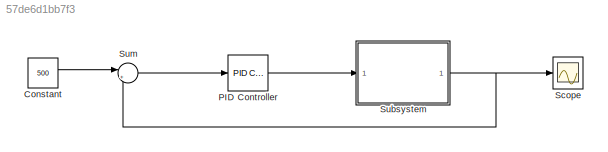
MODEL slx_57de6d1bb7f3
KIND model
CONFIG AbsTol = 1e-3
CONFIG EnableMultiTasking = on
CONFIG FixedStep = auto
CONFIG MaxStep = auto
CONFIG MinStep = auto
CONFIG RelTol = 1e-3
CONFIG SampleTimeConstraint = Unconstrained
CONFIG SolverName = VariableStepAuto
CONFIG StartTime = 0.0
CONFIG StopTime = 100.0
BLOCK [Constant] Constant
  Value = 500
BLOCK [Reference] PID Controller  REF=slpidlib/PID Controller
  Ports = [1, 1]
  SourceBlock = slpidlib/PID Controller
  SourceProductBaseCode = SL
  SourceType = PID 1dof
BLOCK [Scope] Scope
  Floating = off
  NumInputPorts = 1
  Ports = [1]
  ScopeSpecificationString = Simulink.scopes.TimeScopeBlockCfg('CurrentConfiguration', extmgr.ConfigurationSet(extmgr.Configuration('Core','General UI',true),extmgr.Configuration('Core','Source UI',true),extmgr.Configuration('Sources','WiredSimulink',true),extmgr.Configuration('Visuals','Time Domain',true,'SerializedDisplays',{struct('MinYLimReal','-66.97453','MaxYLimReal','602.7708','YLabelReal','','MinYLimMag','0.00000','Ma...<+1361ch>
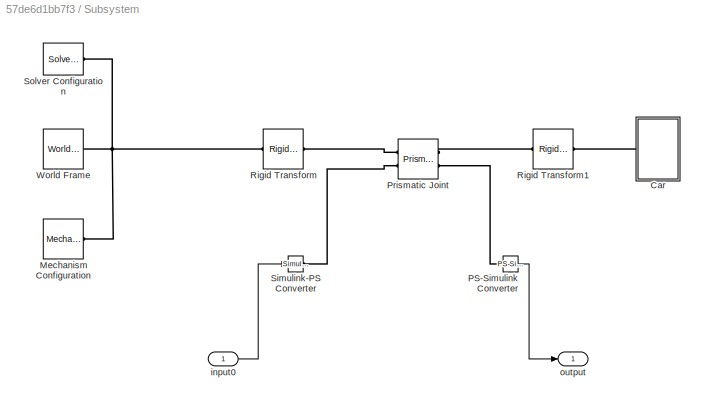
BLOCK [SubSystem] Subsystem
  Ports = [1, 1]
  RequestExecContextInheritance = off
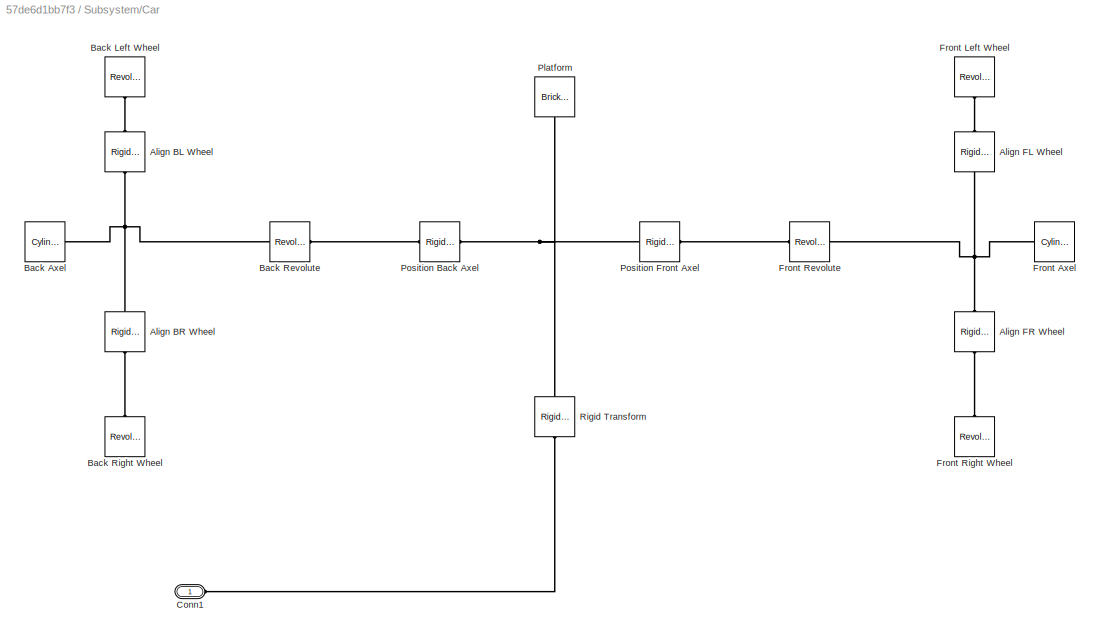
BLOCK [SubSystem] Subsystem/Car
  Ports = [0, 0, 0, 0, 0, 1]
  RequestExecContextInheritance = off
BLOCK [Reference] Subsystem/Car/Align BL Wheel  REF=sm_lib/Frames and
Transforms/Rigid
Transform
  NameLocation = right
  Ports = [0, 0, 0, 0, 0, 1, 1]
  SourceBlock = sm_lib/Frames and\nTransforms/Rigid\nTransform
  SourceProductBaseCode = MS
  SourceType = Rigid\nTransform
BLOCK [Reference] Subsystem/Car/Align BR Wheel  REF=sm_lib/Frames and
Transforms/Rigid
Transform
  NameLocation = left
  Ports = [0, 0, 0, 0, 0, 1, 1]
  SourceBlock = sm_lib/Frames and\nTransforms/Rigid\nTransform
  SourceProductBaseCode = MS
  SourceType = Rigid\nTransform
BLOCK [Reference] Subsystem/Car/Align FL Wheel  REF=sm_lib/Frames and
Transforms/Rigid
Transform
  NameLocation = right
  Ports = [0, 0, 0, 0, 0, 1, 1]
  SourceBlock = sm_lib/Frames and\nTransforms/Rigid\nTransform
  SourceProductBaseCode = MS
  SourceType = Rigid\nTransform
BLOCK [Reference] Subsystem/Car/Align FR Wheel  REF=sm_lib/Frames and
Transforms/Rigid
Transform
  NameLocation = left
  Ports = [0, 0, 0, 0, 0, 1, 1]
  SourceBlock = sm_lib/Frames and\nTransforms/Rigid\nTransform
  SourceProductBaseCode = MS
  SourceType = Rigid\nTransform
BLOCK [Reference] Subsystem/Car/Back Axel  REF=sm_lib/Body Elements/Cylindrical Solid
  NameLocation = top
  Ports = [0, 0, 0, 0, 0, 0, 1]
  SourceBlock = sm_lib/Body Elements/Cylindrical Solid
  SourceProductBaseCode = MS
  SourceType = Cylindrical Solid
BLOCK [Reference] Subsystem/Car/Back Left Wheel  REF=sm_lib/Body Elements/Revolved Solid
  NameLocation = left
  Ports = [0, 0, 0, 0, 0, 0, 1]
  SourceBlock = sm_lib/Body Elements/Revolved Solid
  SourceProductBaseCode = MS
  SourceType = Revolved Solid
BLOCK [Reference] Subsystem/Car/Back Revolute  REF=sm_lib/Joints/Revolute Joint
  Ports = [0, 0, 0, 0, 0, 1, 1]
  SourceBlock = sm_lib/Joints/Revolute Joint
  SourceProductBaseCode = MS
  SourceType = Revolute Joint
BLOCK [Reference] Subsystem/Car/Back Right Wheel  REF=sm_lib/Body Elements/Revolved Solid
  NameLocation = right
  Ports = [0, 0, 0, 0, 0, 0, 1]
  SourceBlock = sm_lib/Body Elements/Revolved Solid
  SourceProductBaseCode = MS
  SourceType = Revolved Solid
BLOCK [PMIOPort] Subsystem/Car/Conn1
  Side = Left
BLOCK [Reference] Subsystem/Car/Front Axel  REF=sm_lib/Body Elements/Cylindrical Solid
  NameLocation = top
  Ports = [0, 0, 0, 0, 0, 0, 1]
  SourceBlock = sm_lib/Body Elements/Cylindrical Solid
  SourceProductBaseCode = MS
  SourceType = Cylindrical Solid
BLOCK [Reference] Subsystem/Car/Front Left Wheel  REF=sm_lib/Body Elements/Revolved Solid
  NameLocation = left
  Ports = [0, 0, 0, 0, 0, 0, 1]
  SourceBlock = sm_lib/Body Elements/Revolved Solid
  SourceProductBaseCode = MS
  SourceType = Revolved Solid
BLOCK [Reference] Subsystem/Car/Front Revolute  REF=sm_lib/Joints/Revolute Joint
  Ports = [0, 0, 0, 0, 0, 1, 1]
  SourceBlock = sm_lib/Joints/Revolute Joint
  SourceProductBaseCode = MS
  SourceType = Revolute Joint
BLOCK [Reference] Subsystem/Car/Front Right Wheel  REF=sm_lib/Body Elements/Revolved Solid
  NameLocation = right
  Ports = [0, 0, 0, 0, 0, 0, 1]
  SourceBlock = sm_lib/Body Elements/Revolved Solid
  SourceProductBaseCode = MS
  SourceType = Revolved Solid
BLOCK [Reference] Subsystem/Car/Platform  REF=sm_lib/Body Elements/Brick Solid
  NameLocation = left
  Ports = [0, 0, 0, 0, 0, 0, 1]
  SourceBlock = sm_lib/Body Elements/Brick Solid
  SourceProductBaseCode = MS
  SourceType = Brick Solid
BLOCK [Reference] Subsystem/Car/Position Back Axel  REF=sm_lib/Frames and
Transforms/Rigid
Transform
  Ports = [0, 0, 0, 0, 0, 1, 1]
  SourceBlock = sm_lib/Frames and\nTransforms/Rigid\nTransform
  SourceProductBaseCode = MS
  SourceType = Rigid\nTransform
BLOCK [Reference] Subsystem/Car/Position Front Axel  REF=sm_lib/Frames and
Transforms/Rigid
Transform
  Ports = [0, 0, 0, 0, 0, 1, 1]
  SourceBlock = sm_lib/Frames and\nTransforms/Rigid\nTransform
  SourceProductBaseCode = MS
  SourceType = Rigid\nTransform
BLOCK [Reference] Subsystem/Car/Rigid Transform  REF=sm_lib/Frames and
Transforms/Rigid
Transform
  NameLocation = right
  Ports = [0, 0, 0, 0, 0, 1, 1]
  SourceBlock = sm_lib/Frames and\nTransforms/Rigid\nTransform
  SourceProductBaseCode = MS
  SourceType = Rigid\nTransform
BLOCK [Reference] Subsystem/Mechanism Configuration  REF=sm_lib/Utilities/Mechanism
Configuration
  Ports = [0, 0, 0, 0, 0, 0, 1]
  SourceBlock = sm_lib/Utilities/Mechanism\nConfiguration
  SourceProductBaseCode = MS
  SourceType = Mechanism\nConfiguration
BLOCK [Reference] Subsystem/PS-Simulink Converter  REF=nesl_utility/PS-Simulink
Converter
  Ports = [0, 1, 0, 0, 0, 1]
  SourceBlock = nesl_utility/PS-Simulink\nConverter
  SourceProductBaseCode = SS,PW,VE
  SourceType = PS-Simulink\nConverter
BLOCK [Reference] Subsystem/Prismatic Joint  REF=sm_lib/Joints/Prismatic
Joint
  Ports = [0, 0, 0, 0, 0, 2, 2]
  SourceBlock = sm_lib/Joints/Prismatic\nJoint
  SourceProductBaseCode = MS
  SourceType = Prismatic\nJoint
BLOCK [Reference] Subsystem/Rigid Transform  REF=sm_lib/Frames and
Transforms/Rigid
Transform
  Ports = [0, 0, 0, 0, 0, 1, 1]
  SourceBlock = sm_lib/Frames and\nTransforms/Rigid\nTransform
  SourceProductBaseCode = MS
  SourceType = Rigid\nTransform
BLOCK [Reference] Subsystem/Rigid Transform1  REF=sm_lib/Frames and
Transforms/Rigid
Transform
  Ports = [0, 0, 0, 0, 0, 1, 1]
  SourceBlock = sm_lib/Frames and\nTransforms/Rigid\nTransform
  SourceProductBaseCode = MS
  SourceType = Rigid\nTransform
BLOCK [Reference] Subsystem/Simulink-PS Converter  REF=nesl_utility/Simulink-PS
Converter
  Ports = [1, 0, 0, 0, 0, 0, 1]
  SourceBlock = nesl_utility/Simulink-PS\nConverter
  SourceProductBaseCode = SS,PW,VE
  SourceType = Simulink-PS\nConverter
BLOCK [Reference] Subsystem/Solver Configuration  REF=nesl_utility/Solver
Configuration
  Ports = [0, 0, 0, 0, 0, 0, 1]
  SourceBlock = nesl_utility/Solver\nConfiguration
  SourceProductBaseCode = SS,PW,VE
  SourceType = Solver\nConfiguration
BLOCK [Reference] Subsystem/World Frame  REF=sm_lib/Frames and
Transforms/World Frame
  Ports = [0, 0, 0, 0, 0, 0, 1]
  SourceBlock = sm_lib/Frames and\nTransforms/World Frame
  SourceProductBaseCode = MS
  SourceType = World Frame
BLOCK [Inport] Subsystem/input0
BLOCK [Outport] Subsystem/output
BLOCK [Sum] Sum
  Inputs = |+-
  Ports = [2, 1]
LINE Constant:1 -> Sum:1
LINE PID Controller:1 -> Subsystem:1
LINE Subsystem/PS-Simulink Converter:1 -> Subsystem/output:1
LINE Subsystem/input0:1 -> Subsystem/Simulink-PS Converter:1
NET Subsystem:1 -> Scope:1, Sum:2
LINE Sum:1 -> PID Controller:1
PNET net1: Subsystem/Car/Align BL Wheel:LConn1 -- Subsystem/Car/Align BR Wheel:LConn1 -- Subsystem/Car/Back Axel:RConn1 -- Subsystem/Car/Back Revolute:RConn1
PLINE Subsystem/Car/Align BL Wheel:RConn1 -- Subsystem/Car/Back Left Wheel:RConn1
PLINE Subsystem/Car/Align BR Wheel:RConn1 -- Subsystem/Car/Back Right Wheel:RConn1
PNET net2: Subsystem/Car/Align FL Wheel:LConn1 -- Subsystem/Car/Align FR Wheel:LConn1 -- Subsystem/Car/Front Axel:RConn1 -- Subsystem/Car/Front Revolute:RConn1
PLINE Subsystem/Car/Align FL Wheel:RConn1 -- Subsystem/Car/Front Left Wheel:RConn1
PLINE Subsystem/Car/Align FR Wheel:RConn1 -- Subsystem/Car/Front Right Wheel:RConn1
PLINE Subsystem/Car/Back Revolute:LConn1 -- Subsystem/Car/Position Back Axel:RConn1
PLINE Subsystem/Car/Conn1:RConn1 -- Subsystem/Car/Rigid Transform:LConn1
PLINE Subsystem/Car/Front Revolute:LConn1 -- Subsystem/Car/Position Front Axel:RConn1
PNET net3: Subsystem/Car/Platform:RConn1 -- Subsystem/Car/Position Back Axel:LConn1 -- Subsystem/Car/Position Front Axel:LConn1 -- Subsystem/Car/Rigid Transform:RConn1
PLINE Subsystem/Car:LConn1 -- Subsystem/Rigid Transform1:RConn1
PNET net4: Subsystem/Mechanism Configuration:RConn1 -- Subsystem/Rigid Transform:LConn1 -- Subsystem/Solver Configuration:RConn1 -- Subsystem/World Frame:RConn1
PLINE Subsystem/PS-Simulink Converter:LConn1 -- Subsystem/Prismatic Joint:RConn2
PLINE Subsystem/Prismatic Joint:LConn1 -- Subsystem/Rigid Transform:RConn1
PLINE Subsystem/Prismatic Joint:LConn2 -- Subsystem/Simulink-PS Converter:RConn1
PLINE Subsystem/Prismatic Joint:RConn1 -- Subsystem/Rigid Transform1:LConn1
note: NET lines group one-source signal fan-out (src -> all destinations, sorted); 1:1 wires keep LINE; PNET lines group multi-terminal physical nets as a canonical sorted terminal list (undirected conserving connections); 2-terminal nets keep the pairwise PLINE form
